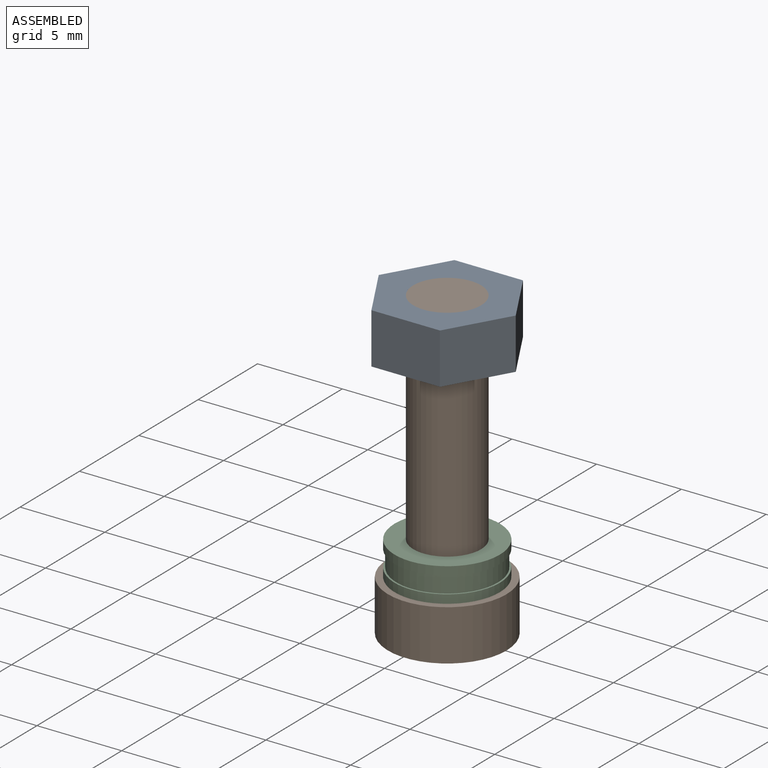
[diagram: assembled view]
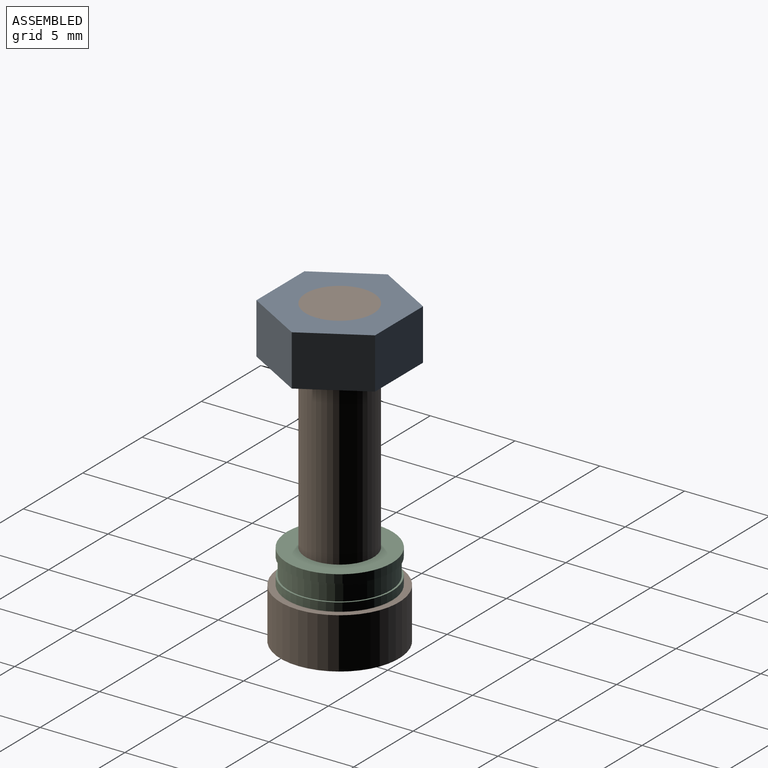
[diagram: assembled view, second angle]
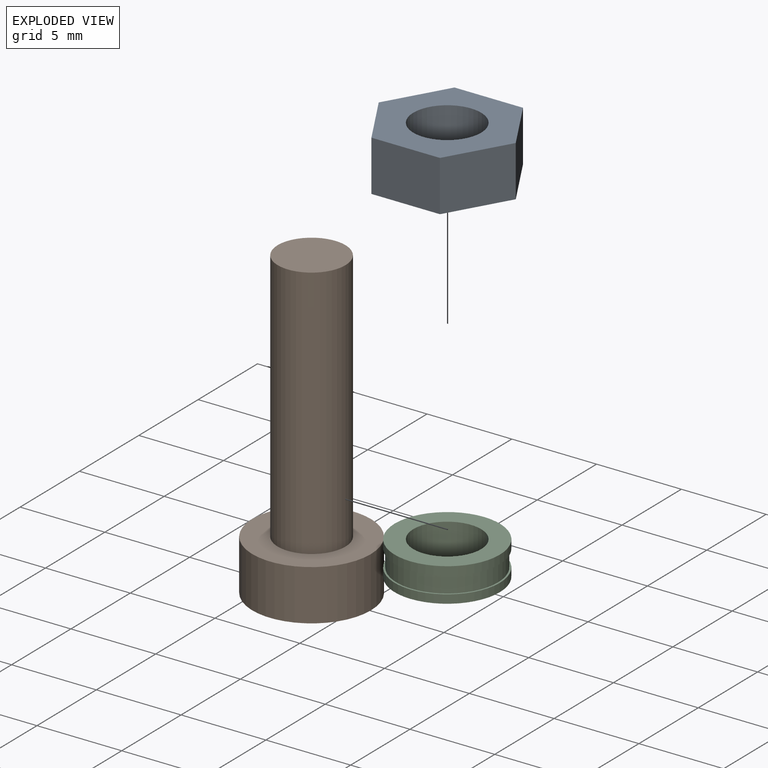
[diagram: exploded view]
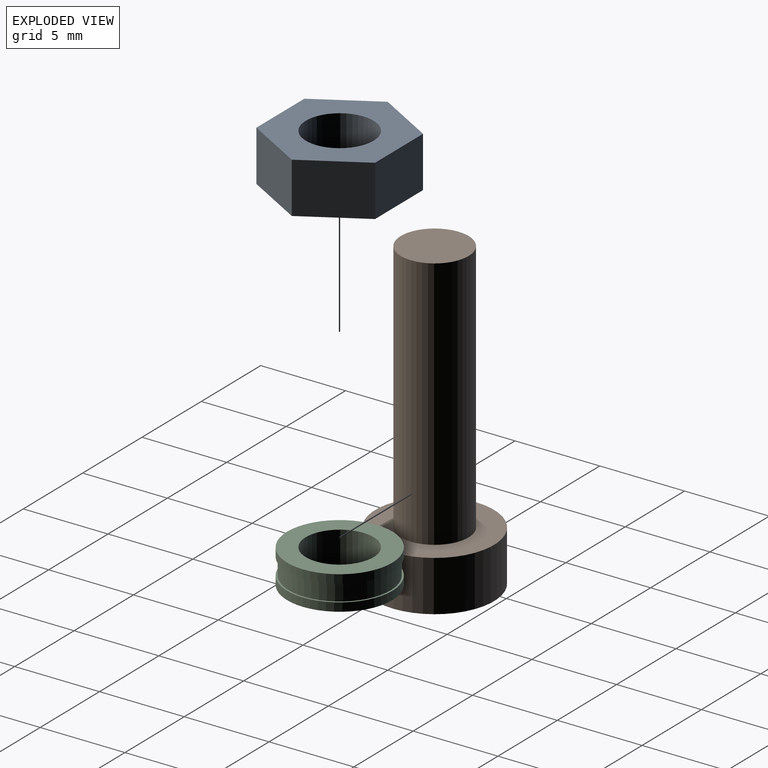
[diagram: exploded view, second angle]
ASSEMBLY  parts=3 mates=2
PART A: 9 faces, bbox 8.1x7x3 mm
  f0: plane 3.5x3mm, normal (0.87,-0.5,0), area 12.1mm2, adj f1,f6,f7,f8
  f1: plane 3.5x3mm, normal (0.87,0.5,0), area 12.1mm2, adj f0,f2,f7,f8
  f2: plane 4.04x3mm, normal (0,1,0), area 12.1mm2, adj f1,f3,f7,f8
  f3: plane 3.5x3mm, normal (-0.87,0.5,0), area 12.1mm2, adj f2,f4,f7,f8
  f4: plane 3.5x3mm, normal (-0.87,-0.5,0), area 12.1mm2, adj f3,f6,f7,f8
  f5: cylinder r=2mm len=4mm, axis (0,0,-1), area 37.7mm2, adj f7,f8
  f6: plane 4.04x3mm, normal (0,-1,0), area 12.1mm2, adj f0,f4,f7,f8
  f7: plane 8.08x7mm, normal (0,0,1), area 29.9mm2, adj f0,f1,f2,f3,f4,f5,f6
  f8: plane 8.08x7mm, normal (0,0,-1), area 29.9mm2, adj f0,f1,f2,f3,f4,f5,f6
PART B: 12 faces, bbox 7x7x18 mm
  f0: plane 7x7mm, normal (0,0,-1), area 24.6mm2, adj f1,f3,f4,f5,f6,f7,f8
  f1: cylinder r=3.5mm len=7mm, axis (0,0,-1), area 66mm2, adj f0,f2
  f2: plane 7x7mm, normal (0,0,1), area 25.9mm2, adj f1,f10
  f3: plane 2x2mm, normal (-0.87,-0.5,0), area 4.6mm2, adj f0,f4,f8,f9
  f4: plane 2x2mm, normal (-0.87,0.5,0), area 4.6mm2, adj f0,f3,f5,f9
  f5: plane 2.31x2mm, normal (0,1,0), area 4.6mm2, adj f0,f4,f6,f9
  f6: plane 2x2mm, normal (0.87,0.5,0), area 4.6mm2, adj f0,f5,f7,f9
  f7: plane 2x2mm, normal (0.87,-0.5,0), area 4.6mm2, adj f0,f6,f8,f9
  f8: plane 2.31x2mm, normal (0,-1,0), area 4.6mm2, adj f0,f3,f7,f9
  f9: plane 4.62x4mm, normal (0,0,-1), area 13.9mm2, adj f3,f4,f5,f6,f7,f8
  f10: cylinder r=2mm len=15mm, axis (0,0,-1), area 188.5mm2, adj f2,f11
  f11: plane 4x4mm, normal (0,0,1), area 12.6mm2, adj f10
PART C: 8 faces, bbox 6.2x6.2x2 mm
  f0: cylinder r=2mm len=4mm, axis (0,0,-1), area 25.1mm2, adj f3,f6
  f1: cylinder r=3mm len=6mm, axis (0,0,-1), area 18.8mm2, adj f4,f7
  f2: cylinder r=3.1mm len=6.2mm, axis (0,0,-1), area 9.7mm2, adj f3,f4
  f3: plane 6.2x6.2mm, normal (0,0,1), area 17.6mm2, adj f0,f2
  f4: plane 6.2x6.2mm, normal (0,0,-1), area 1.9mm2, adj f1,f2
  f5: cylinder r=3.1mm len=6.2mm, axis (0,0,1), area 9.7mm2, adj f6,f7
  f6: plane 6.2x6.2mm, normal (0,0,-1), area 17.6mm2, adj f0,f5
  f7: plane 6.2x6.2mm, normal (0,0,1), area 1.9mm2, adj f1,f5
PLACE A rot(axis=(1,0,0),180deg) t=(-29.83,-0.16,16.95)mm
PLACE B t=(-16.47,-0.16,-1.05)mm
PLACE C t=(-47.47,-0.16,2.45)mm
MATE fastened C.f0 <-> B.f1  axis (0,0,-1) through (-11.19,-0.16,1.95)mm
MATE fastened A.f5 <-> B.f1  axis (0,0,1) through (-11.19,-0.16,16.95)mm
